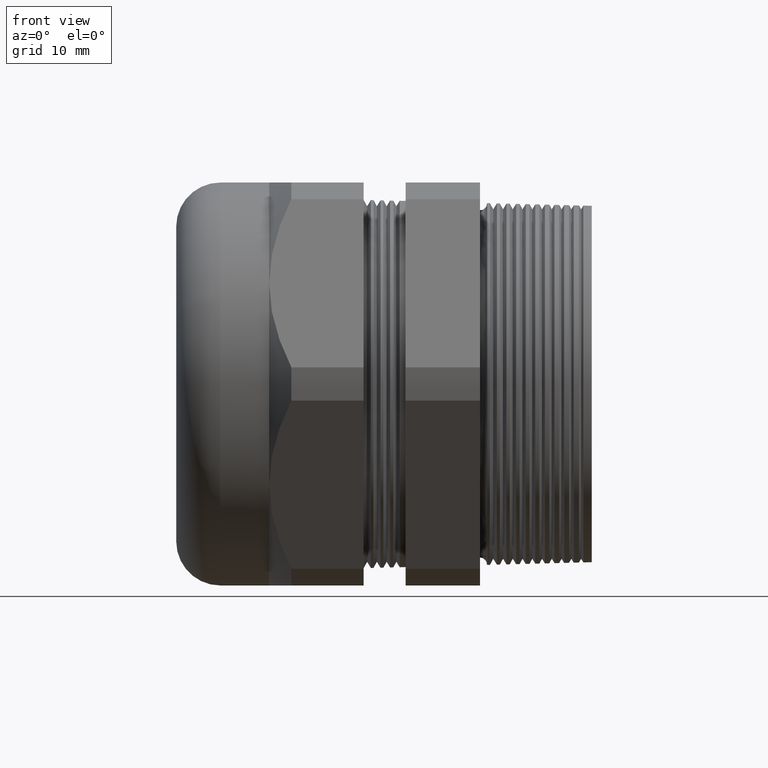
[diagram: clean part render]
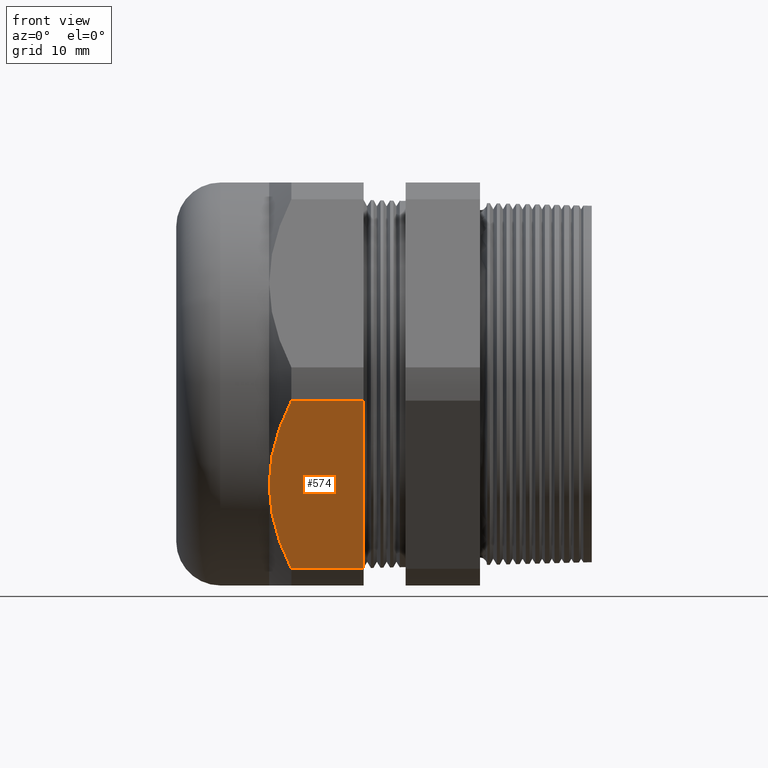
[diagram: same view with one face highlighted and labeled with its STEP entity id]
A machine part, front view. The second image highlights one B-rep face of the part: STEP entity #574.
In plain terms, the highlighted planar face has unit normal (0, -0.866, -0.5).
Its self-contained STEP definition (entity closure, byte-faithful):
#1 = ORIENTED_EDGE ( 'NONE', *, *, #2, .F. ) ;
#2 = EDGE_CURVE ( 'NONE', #570, #3, #3449, .T. ) ;
#3 = VERTEX_POINT ( 'NONE', #3445 ) ;
#15 = EDGE_CURVE ( 'NONE', #3, #1234, #3487, .T. ) ;
#17 = ORIENTED_EDGE ( 'NONE', *, *, #15, .F. ) ;
#44 = DIRECTION ( 'NONE',  ( 0.0000000000000000000, 0.4999999999999998900, -0.8660254037844386000 ) ) ;
#45 = DIRECTION ( 'NONE',  ( 0.0000000000000000000, -0.8660254037844387100, -0.4999999999999999400 ) ) ;
#46 = CARTESIAN_POINT ( 'NONE',  ( 0.4000000000000000800, -0.8001812664006662200, -1.174045391329239000 ) ) ;
#47 = AXIS2_PLACEMENT_3D ( 'NONE', #46, #45, #44 ) ;
#48 = PLANE ( 'NONE',  #47 ) ;
#50 = FACE_OUTER_BOUND ( 'NONE', #559, .T. ) ;
#53 = CARTESIAN_POINT ( 'NONE',  ( -1.649449999999999600, -1.108512516844081500, -0.6399999999999999000 ) ) ;
#54 = CARTESIAN_POINT ( 'NONE',  ( -1.649449999999999900, -1.121859084437100100, -0.6168830668222402600 ) ) ;
#55 = CARTESIAN_POINT ( 'NONE',  ( -1.648605375922474400, -1.135327726160965600, -0.5935546950475632000 ) ) ;
#56 = CARTESIAN_POINT ( 'NONE',  ( -1.645250703011700500, -1.162087476386243900, -0.5472054480595283100 ) ) ;
#57 = CARTESIAN_POINT ( 'NONE',  ( -1.642751623238848200, -1.175364956809803700, -0.5242081773694213800 ) ) ;
#58 = CARTESIAN_POINT ( 'NONE',  ( -1.632937944983450000, -1.214908754364534900, -0.4557163108804086500 ) ) ;
#59 = CARTESIAN_POINT ( 'NONE',  ( -1.623306185439523000, -1.240886337798232000, -0.4107218165153859700 ) ) ;
#60 = CARTESIAN_POINT ( 'NONE',  ( -1.586421399014647000, -1.317823542228753000, -0.2774626694494097800 ) ) ;
#61 = CARTESIAN_POINT ( 'NONE',  ( -1.551227874631296900, -1.367793724363572000, -0.1909117751284317700 ) ) ;
#62 = CARTESIAN_POINT ( 'NONE',  ( -1.508650000000000300, -1.416843767287496500, -0.1059546086707610200 ) ) ;
#66 = B_SPLINE_CURVE_WITH_KNOTS ( 'NONE', 3,
 ( #62, #61, #60, #59, #58, #57, #56, #55, #54, #53 ),
 .UNSPECIFIED., .F., .F.,
 ( 4, 2, 2, 2, 4 ),
 ( 2.483246117720356300E-007, 0.008038183629490618400, 0.01205715128193003700, 0.01406663510814974500, 0.01607611893436945400 ),
 .UNSPECIFIED. ) ;
#67 = CARTESIAN_POINT ( 'NONE',  ( -1.049450000000000000, -1.416843767287496500, -0.1059546086707611600 ) ) ;
#94 = CARTESIAN_POINT ( 'NONE',  ( -1.549537497512201600, -0.8496599179459882700, -1.088345852962746100 ) ) ;
#95 = CARTESIAN_POINT ( 'NONE',  ( -1.584234898263659200, -0.9002675725821840400, -1.000690823880956000 ) ) ;
#96 = CARTESIAN_POINT ( 'NONE',  ( -1.599223044692607000, -0.9257579459085126800, -0.9565402021758556700 ) ) ;
#97 = CARTESIAN_POINT ( 'NONE',  ( -1.635980934946116100, -1.002877599663059400, -0.8229650436108604300 ) ) ;
#98 = CARTESIAN_POINT ( 'NONE',  ( -1.649449999999999600, -1.055162852598234600, -0.7324043290405476400 ) ) ;
#99 = CARTESIAN_POINT ( 'NONE',  ( -1.649449999999999600, -1.108512516844081500, -0.6399999999999999000 ) ) ;
#100 = CARTESIAN_POINT ( 'NONE',  ( -1.649449999999999600, -1.108512516844081500, -0.6399999999999999000 ) ) ;
#101 = B_SPLINE_CURVE_WITH_KNOTS ( 'NONE', 3,
 ( #99, #98, #97, #96, #95, #94, #158, #157 ),
 .UNSPECIFIED., .F., .F.,
 ( 4, 2, 2, 4 ),
 ( 0.01607611893436945400, 0.02410854275338653000, 0.02812475466289506700, 0.03214096657240359700 ),
 .UNSPECIFIED. ) ;
#108 = CARTESIAN_POINT ( 'NONE',  ( -1.508650000000000000, -0.8001812664006657800, -1.174045391329239500 ) ) ;
#157 = CARTESIAN_POINT ( 'NONE',  ( -1.508650000000000000, -0.8001812664006657800, -1.174045391329239500 ) ) ;
#158 = CARTESIAN_POINT ( 'NONE',  ( -1.529965280376754700, -0.8247366352740287400, -1.131514244841979700 ) ) ;
#559 = EDGE_LOOP ( 'NONE', ( #561, #569, #1612, #17, #1 ) ) ;
#560 = VERTEX_POINT ( 'NONE', #3568 ) ;
#561 = ORIENTED_EDGE ( 'NONE', *, *, #562, .T. ) ;
#562 = EDGE_CURVE ( 'NONE', #570, #560, #3567, .T. ) ;
#567 = EDGE_CURVE ( 'NONE', #560, #1613, #66, .T. ) ;
#569 = ORIENTED_EDGE ( 'NONE', *, *, #567, .T. ) ;
#570 = VERTEX_POINT ( 'NONE', #67 ) ;
#574 = ADVANCED_FACE ( 'NONE', ( #50 ), #48, .T. ) ;
#1234 = VERTEX_POINT ( 'NONE', #108 ) ;
#1429 = EDGE_CURVE ( 'NONE', #1613, #1234, #101, .T. ) ;
#1612 = ORIENTED_EDGE ( 'NONE', *, *, #1429, .T. ) ;
#1613 = VERTEX_POINT ( 'NONE', #100 ) ;
#3445 = CARTESIAN_POINT ( 'NONE',  ( -1.049450000000000000, -0.8001812664006657800, -1.174045391329239500 ) ) ;
#3446 = DIRECTION ( 'NONE',  ( 0.0000000000000000000, 0.4999999999999998900, -0.8660254037844386000 ) ) ;
#3447 = VECTOR ( 'NONE', #3446, 39.37007874015748100 ) ;
#3448 = CARTESIAN_POINT ( 'NONE',  ( -1.049450000000000000, -0.8160125168440816000, -1.146624861213896500 ) ) ;
#3449 = LINE ( 'NONE', #3448, #3447 ) ;
#3484 = DIRECTION ( 'NONE',  ( -1.000000000000000000, 0.0000000000000000000, 0.0000000000000000000 ) ) ;
#3485 = VECTOR ( 'NONE', #3484, 39.37007874015748100 ) ;
#3486 = CARTESIAN_POINT ( 'NONE',  ( 0.4000000000000000800, -0.8001812664006657800, -1.174045391329239500 ) ) ;
#3487 = LINE ( 'NONE', #3486, #3485 ) ;
#3564 = DIRECTION ( 'NONE',  ( -1.000000000000000000, 0.0000000000000000000, 0.0000000000000000000 ) ) ;
#3565 = VECTOR ( 'NONE', #3564, 39.37007874015748100 ) ;
#3566 = CARTESIAN_POINT ( 'NONE',  ( 0.4000000000000000800, -1.416843767287496500, -0.1059546086707611600 ) ) ;
#3567 = LINE ( 'NONE', #3566, #3565 ) ;
#3568 = CARTESIAN_POINT ( 'NONE',  ( -1.508650000000000300, -1.416843767287496500, -0.1059546086707610200 ) ) ;